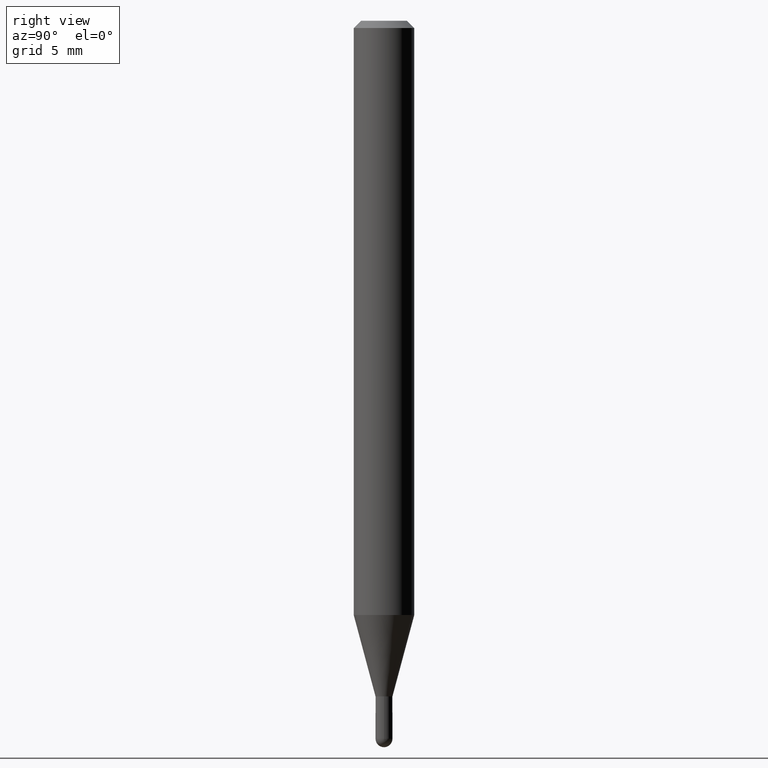
[diagram: clean part render]
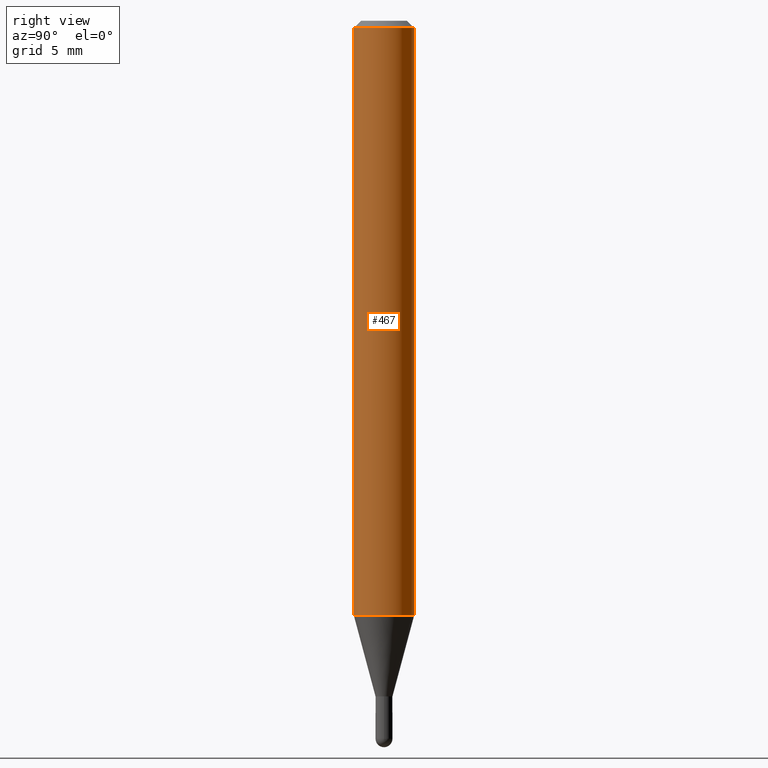
[diagram: same view with one face highlighted and labeled with its STEP entity id]
A machine part, right view. The second image highlights one B-rep face of the part: STEP entity #467.
In plain terms, the highlighted cylindrical surface (edge-blend (fillet) strip) has radius 1.5875 mm, axis along (-0, 0, 1).
Its self-contained STEP definition (entity closure, byte-faithful):
#14 = CIRCLE ( 'NONE', #217, 0.06250000000000000000 ) ;
#24 = EDGE_LOOP ( 'NONE', ( #313, #266, #479, #214 ) ) ;
#26 = CARTESIAN_POINT ( 'NONE',  ( -4.364351673553912750E-16, -0.06250000000000005551, -0.01499999999999979128 ) ) ;
#51 = CARTESIAN_POINT ( 'NONE',  ( 3.668186922725490346E-31, -5.237245331534468844E-17, -0.01500000000000000812 ) ) ;
#56 = CIRCLE ( 'NONE', #364, 0.06250000000000000000 ) ;
#58 = DIRECTION ( 'NONE',  ( -2.445457948483658713E-29, 3.491496887689643941E-15, 1.000000000000000000 ) ) ;
#90 = EDGE_CURVE ( 'NONE', #305, #140, #449, .T. ) ;
#99 = CARTESIAN_POINT ( 'NONE',  ( -4.364351673553916201E-16, -0.06250000000000000000, 2.182185554806027463E-16 ) ) ;
#101 = FACE_OUTER_BOUND ( 'NONE', #24, .T. ) ;
#132 = DIRECTION ( 'NONE',  ( -2.445457948483658713E-29, 3.491496887689643941E-15, 1.000000000000000000 ) ) ;
#133 = VERTEX_POINT ( 'NONE', #192 ) ;
#140 = VERTEX_POINT ( 'NONE', #26 ) ;
#155 = AXIS2_PLACEMENT_3D ( 'NONE', #292, #362, #182 ) ;
#173 = CARTESIAN_POINT ( 'NONE',  ( 3.000718039116578967E-29, -4.284268188257384989E-15, -1.227057713659405636 ) ) ;
#176 = DIRECTION ( 'NONE',  ( -6.982962677686265922E-15, -1.000000000000000000, 3.483106191921935554E-15 ) ) ;
#182 = DIRECTION ( 'NONE',  ( -6.982962677686265922E-15, -1.000000000000000000, 3.491496887689643941E-15 ) ) ;
#192 = CARTESIAN_POINT ( 'NONE',  ( 4.440892098500928887E-16, 0.06249999999999995837, -0.01500000000000022669 ) ) ;
#214 = ORIENTED_EDGE ( 'NONE', *, *, #90, .F. ) ;
#217 = AXIS2_PLACEMENT_3D ( 'NONE', #51, #474, #176 ) ;
#222 = DIRECTION ( 'NONE',  ( -6.982962677686265922E-15, -1.000000000000000000, 4.370956789862821150E-15 ) ) ;
#229 = EDGE_CURVE ( 'NONE', #305, #508, #56, .T. ) ;
#250 = CYLINDRICAL_SURFACE ( 'NONE', #155, 0.06250000000000000000 ) ;
#254 = EDGE_CURVE ( 'NONE', #140, #133, #14, .T. ) ;
#255 = CARTESIAN_POINT ( 'NONE',  ( -4.364351673553617913E-16, -0.06250000000000430211, -1.227057713659405414 ) ) ;
#266 = ORIENTED_EDGE ( 'NONE', *, *, #368, .T. ) ;
#285 = VECTOR ( 'NONE', #132, 39.37007874015748143 ) ;
#292 = CARTESIAN_POINT ( 'NONE',  ( 0.000000000000000000, 0.000000000000000000, 0.000000000000000000 ) ) ;
#299 = CARTESIAN_POINT ( 'NONE',  ( 4.440892098500924943E-16, 0.06249999999999569789, -1.227057713659405858 ) ) ;
#305 = VERTEX_POINT ( 'NONE', #255 ) ;
#313 = ORIENTED_EDGE ( 'NONE', *, *, #229, .T. ) ;
#353 = DIRECTION ( 'NONE',  ( -2.445457948483658713E-29, 3.491496887689643941E-15, 1.000000000000000000 ) ) ;
#362 = DIRECTION ( 'NONE',  ( -2.445457948483658713E-29, 3.491496887689643941E-15, 1.000000000000000000 ) ) ;
#364 = AXIS2_PLACEMENT_3D ( 'NONE', #173, #353, #222 ) ;
#368 = EDGE_CURVE ( 'NONE', #508, #133, #377, .T. ) ;
#377 = LINE ( 'NONE', #446, #285 ) ;
#446 = CARTESIAN_POINT ( 'NONE',  ( 4.440892098500625669E-16, 0.06250000000000000000, -2.182185554806027463E-16 ) ) ;
#449 = LINE ( 'NONE', #99, #499 ) ;
#467 = ADVANCED_FACE ( 'NONE', ( #101 ), #250, .T. ) ;
#474 = DIRECTION ( 'NONE',  ( -2.445457948483658713E-29, 3.491496887689643941E-15, 1.000000000000000000 ) ) ;
#479 = ORIENTED_EDGE ( 'NONE', *, *, #254, .F. ) ;
#499 = VECTOR ( 'NONE', #58, 39.37007874015748143 ) ;
#508 = VERTEX_POINT ( 'NONE', #299 ) ;